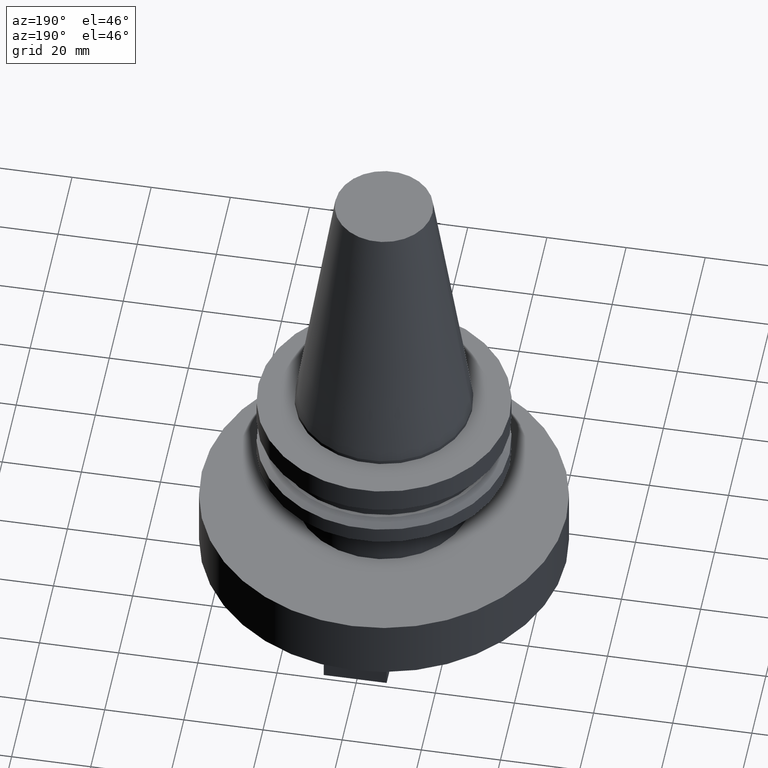
[diagram: clean part render]
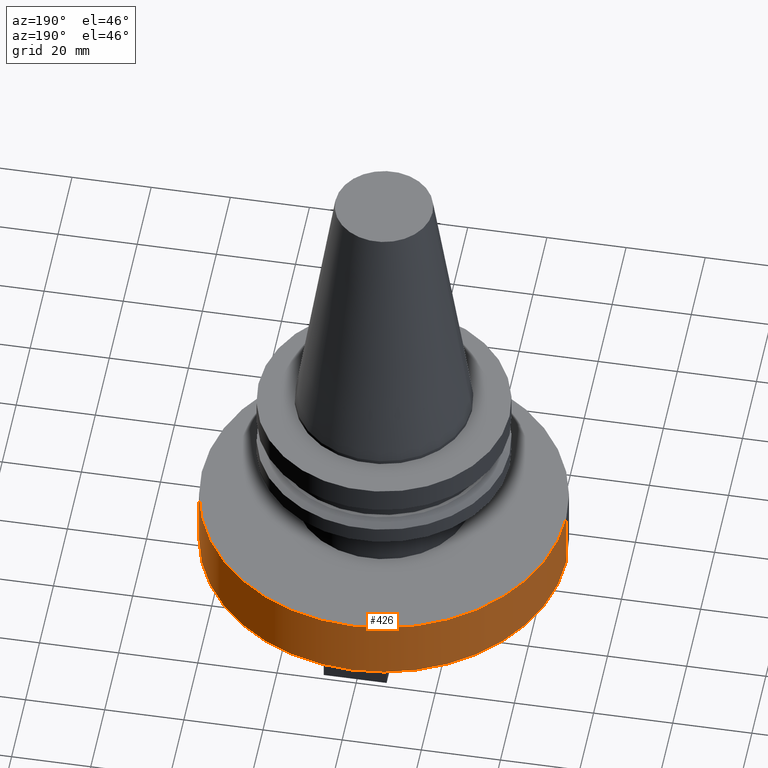
[diagram: same view with one face highlighted and labeled with its STEP entity id]
A machine part, auxiliary view. The second image highlights one B-rep face of the part: STEP entity #426.
In plain terms, the highlighted cylindrical surface (partial cylindrical patch) has radius 46.05 mm, axis along (-0, -0, 1).
Its self-contained STEP definition (entity closure, byte-faithful):
#7 = VERTEX_POINT ( 'NONE', #62 ) ;
#55 = CIRCLE ( 'NONE', #72, 46.04999999999999716 ) ;
#62 = CARTESIAN_POINT ( 'NONE',  ( -46.04999999999999716, 5.639498510073560988E-15, -35.04999999999999716 ) ) ;
#72 = AXIS2_PLACEMENT_3D ( 'NONE', #127, #813, #478 ) ;
#118 = ORIENTED_EDGE ( 'NONE', *, *, #651, .F. ) ;
#127 = CARTESIAN_POINT ( 'NONE',  ( 0.000000000000000000, 0.000000000000000000, -35.04999999999999716 ) ) ;
#150 = EDGE_CURVE ( 'NONE', #887, #7, #938, .T. ) ;
#159 = VECTOR ( 'NONE', #860, 1000.000000000000000 ) ;
#181 = DIRECTION ( 'NONE',  ( 1.000000000000000000, 0.000000000000000000, 0.000000000000000000 ) ) ;
#259 = CYLINDRICAL_SURFACE ( 'NONE', #720, 46.04999999999999716 ) ;
#362 = AXIS2_PLACEMENT_3D ( 'NONE', #487, #831, #910 ) ;
#365 = CARTESIAN_POINT ( 'NONE',  ( 0.000000000000000000, 0.000000000000000000, 0.000000000000000000 ) ) ;
#426 = ADVANCED_FACE ( 'NONE', ( #858 ), #259, .T. ) ;
#478 = DIRECTION ( 'NONE',  ( 1.000000000000000000, 0.000000000000000000, 0.000000000000000000 ) ) ;
#483 = EDGE_CURVE ( 'NONE', #783, #972, #1027, .T. ) ;
#487 = CARTESIAN_POINT ( 'NONE',  ( 0.000000000000000000, 0.000000000000000000, -50.79999999999999716 ) ) ;
#523 = DIRECTION ( 'NONE',  ( -0.000000000000000000, -0.000000000000000000, 1.000000000000000000 ) ) ;
#531 = DIRECTION ( 'NONE',  ( -0.000000000000000000, -0.000000000000000000, 1.000000000000000000 ) ) ;
#554 = ORIENTED_EDGE ( 'NONE', *, *, #812, .T. ) ;
#608 = CARTESIAN_POINT ( 'NONE',  ( 46.04999999999999716, 0.000000000000000000, 0.000000000000000000 ) ) ;
#612 = VECTOR ( 'NONE', #523, 1000.000000000000000 ) ;
#651 = EDGE_CURVE ( 'NONE', #972, #7, #55, .T. ) ;
#684 = CARTESIAN_POINT ( 'NONE',  ( 46.04999999999999716, 0.000000000000000000, -35.04999999999999716 ) ) ;
#700 = CARTESIAN_POINT ( 'NONE',  ( -46.04999999999999716, 5.639498510073560988E-15, 0.000000000000000000 ) ) ;
#706 = CIRCLE ( 'NONE', #362, 46.04999999999999716 ) ;
#720 = AXIS2_PLACEMENT_3D ( 'NONE', #365, #531, #181 ) ;
#745 = CARTESIAN_POINT ( 'NONE',  ( 46.04999999999999716, 0.000000000000000000, -50.79999999999999716 ) ) ;
#753 = ORIENTED_EDGE ( 'NONE', *, *, #483, .F. ) ;
#765 = ORIENTED_EDGE ( 'NONE', *, *, #150, .T. ) ;
#783 = VERTEX_POINT ( 'NONE', #745 ) ;
#812 = EDGE_CURVE ( 'NONE', #783, #887, #706, .T. ) ;
#813 = DIRECTION ( 'NONE',  ( -0.000000000000000000, -0.000000000000000000, 1.000000000000000000 ) ) ;
#831 = DIRECTION ( 'NONE',  ( -0.000000000000000000, -0.000000000000000000, 1.000000000000000000 ) ) ;
#858 = FACE_OUTER_BOUND ( 'NONE', #964, .T. ) ;
#860 = DIRECTION ( 'NONE',  ( -0.000000000000000000, -0.000000000000000000, 1.000000000000000000 ) ) ;
#887 = VERTEX_POINT ( 'NONE', #1065 ) ;
#910 = DIRECTION ( 'NONE',  ( 1.000000000000000000, 0.000000000000000000, 0.000000000000000000 ) ) ;
#938 = LINE ( 'NONE', #700, #159 ) ;
#964 = EDGE_LOOP ( 'NONE', ( #554, #765, #118, #753 ) ) ;
#972 = VERTEX_POINT ( 'NONE', #684 ) ;
#1027 = LINE ( 'NONE', #608, #612 ) ;
#1065 = CARTESIAN_POINT ( 'NONE',  ( -46.04999999999999716, 5.639498510073560988E-15, -50.79999999999999716 ) ) ;